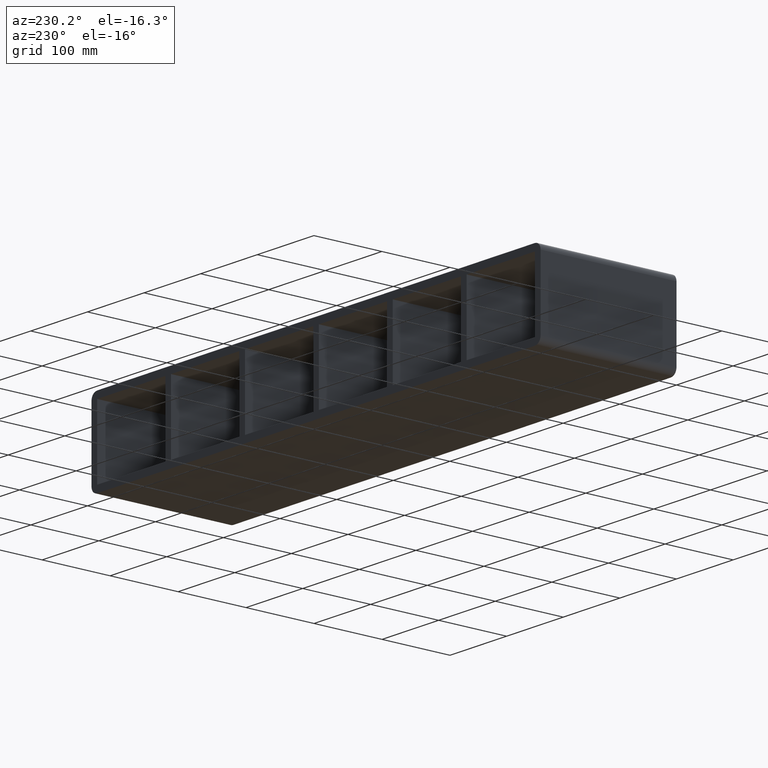
[diagram: clean part render]
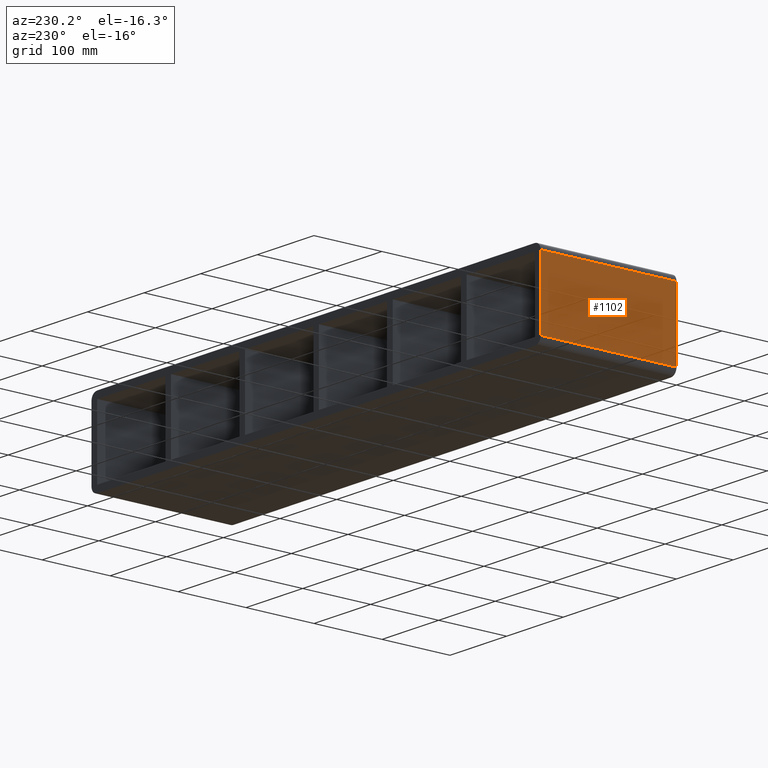
[diagram: same view with one face highlighted and labeled with its STEP entity id]
A machine part, auxiliary view. The second image highlights one B-rep face of the part: STEP entity #1102.
In plain terms, the highlighted planar face has unit normal (-1, 0, 0).
Its self-contained STEP definition (entity closure, byte-faithful):
#773=CARTESIAN_POINT('',(-396.5,197.0,-50.500000000000007));
#774=VERTEX_POINT('',#773);
#792=CARTESIAN_POINT('',(-396.5,-3.0,-50.500000000000007));
#793=VERTEX_POINT('',#792);
#801=CARTESIAN_POINT('',(-396.5,-3.0,-50.500000000000007));
#802=DIRECTION('',(0.0,1.0,0.0));
#803=VECTOR('',#802,200.0);
#804=LINE('',#801,#803);
#805=EDGE_CURVE('',#793,#774,#804,.T.);
#858=CARTESIAN_POINT('',(-396.5,-3.0,50.500000000000007));
#859=VERTEX_POINT('',#858);
#867=CARTESIAN_POINT('',(-396.5,-3.0,50.500000000000007));
#868=DIRECTION('',(0.0,0.0,-1.0));
#869=VECTOR('',#868,101.00000000000001);
#870=LINE('',#867,#869);
#871=EDGE_CURVE('',#859,#793,#870,.T.);
#1032=CARTESIAN_POINT('',(-396.5,197.0,50.500000000000007));
#1033=VERTEX_POINT('',#1032);
#1041=CARTESIAN_POINT('',(-396.5,197.0,50.500000000000007));
#1042=DIRECTION('',(0.0,-1.0,0.0));
#1043=VECTOR('',#1042,200.0);
#1044=LINE('',#1041,#1043);
#1045=EDGE_CURVE('',#1033,#859,#1044,.T.);
#1086=CARTESIAN_POINT('',(-396.5,0.0,-60.500000000000007));
#1087=DIRECTION('',(-1.0,0.0,0.0));
#1088=DIRECTION('',(0.0,0.0,1.0));
#1089=AXIS2_PLACEMENT_3D('',#1086,#1087,#1088);
#1090=PLANE('',#1089);
#1091=ORIENTED_EDGE('',*,*,#805,.F.);
#1092=ORIENTED_EDGE('',*,*,#871,.F.);
#1093=ORIENTED_EDGE('',*,*,#1045,.F.);
#1094=CARTESIAN_POINT('',(-396.5,197.0,-50.500000000000007));
#1095=DIRECTION('',(0.0,0.0,1.0));
#1096=VECTOR('',#1095,101.00000000000001);
#1097=LINE('',#1094,#1096);
#1098=EDGE_CURVE('',#774,#1033,#1097,.T.);
#1099=ORIENTED_EDGE('',*,*,#1098,.F.);
#1100=EDGE_LOOP('',(#1091,#1092,#1093,#1099));
#1101=FACE_OUTER_BOUND('',#1100,.T.);
#1102=ADVANCED_FACE('',(#1101),#1090,.T.);